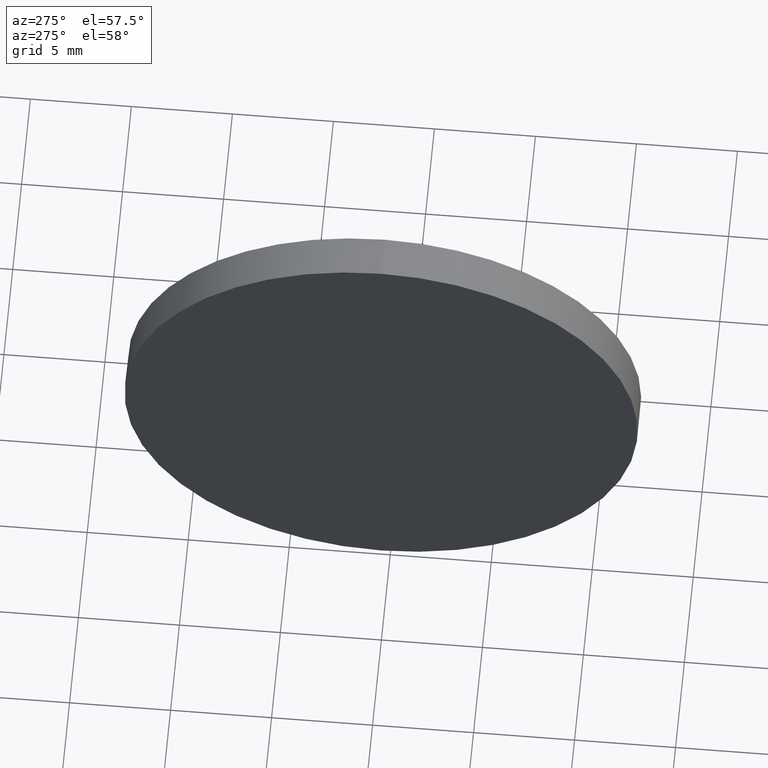
[diagram: clean part render]
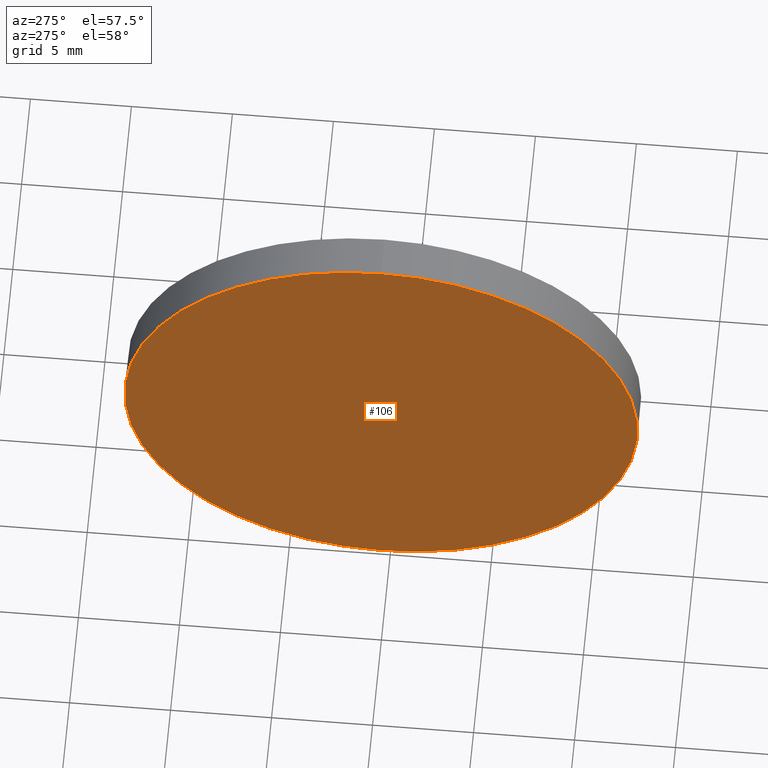
[diagram: same view with one face highlighted and labeled with its STEP entity id]
A machine part, auxiliary view. The second image highlights one B-rep face of the part: STEP entity #106.
In plain terms, the highlighted planar face has unit normal (1, 0, 0).
Its self-contained STEP definition (entity closure, byte-faithful):
#13 = VERTEX_POINT ( 'NONE', #143 ) ;
#15 = FACE_OUTER_BOUND ( 'NONE', #40, .T. ) ;
#17 = CARTESIAN_POINT ( 'NONE',  ( 389.8680491489571400, 40.44166342956046400, 0.0000000000000000000 ) ) ;
#20 = ORIENTED_EDGE ( 'NONE', *, *, #57, .T. ) ;
#27 = CARTESIAN_POINT ( 'NONE',  ( 389.8680491489571400, 40.44166342956046400, 0.0000000000000000000 ) ) ;
#31 = PLANE ( 'NONE',  #77 ) ;
#32 = DIRECTION ( 'NONE',  ( 0.0000000000000000000, 0.0000000000000000000, 1.000000000000000000 ) ) ;
#34 = EDGE_CURVE ( 'NONE', #93, #13, #99, .T. ) ;
#40 = EDGE_LOOP ( 'NONE', ( #20, #71 ) ) ;
#47 = CARTESIAN_POINT ( 'NONE',  ( 389.8680491489571400, 40.44166342956046400, -12.70000000000000300 ) ) ;
#52 = AXIS2_PLACEMENT_3D ( 'NONE', #27, #74, #32 ) ;
#57 = EDGE_CURVE ( 'NONE', #13, #93, #176, .T. ) ;
#71 = ORIENTED_EDGE ( 'NONE', *, *, #34, .T. ) ;
#74 = DIRECTION ( 'NONE',  ( -1.000000000000000000, -0.0000000000000000000, -0.0000000000000000000 ) ) ;
#77 = AXIS2_PLACEMENT_3D ( 'NONE', #179, #163, #124 ) ;
#93 = VERTEX_POINT ( 'NONE', #47 ) ;
#99 = CIRCLE ( 'NONE', #162, 12.70000000000000300 ) ;
#106 = ADVANCED_FACE ( 'NONE', ( #15 ), #31, .F. ) ;
#118 = DIRECTION ( 'NONE',  ( 0.0000000000000000000, 0.0000000000000000000, 1.000000000000000000 ) ) ;
#124 = DIRECTION ( 'NONE',  ( 0.0000000000000000000, 0.0000000000000000000, -1.000000000000000000 ) ) ;
#143 = CARTESIAN_POINT ( 'NONE',  ( 389.8680491489571400, 40.44166342956046400, 12.70000000000000300 ) ) ;
#158 = DIRECTION ( 'NONE',  ( -1.000000000000000000, -0.0000000000000000000, -0.0000000000000000000 ) ) ;
#162 = AXIS2_PLACEMENT_3D ( 'NONE', #17, #158, #118 ) ;
#163 = DIRECTION ( 'NONE',  ( 1.000000000000000000, 0.0000000000000000000, 0.0000000000000000000 ) ) ;
#176 = CIRCLE ( 'NONE', #52, 12.70000000000000300 ) ;
#179 = CARTESIAN_POINT ( 'NONE',  ( 389.8680491489571400, 40.44166342956046400, 0.0000000000000000000 ) ) ;